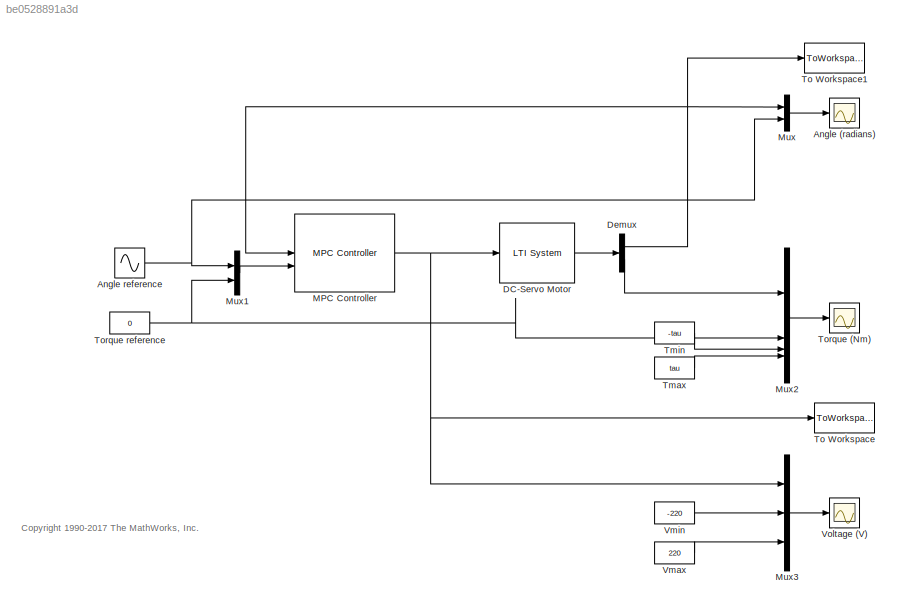
MODEL slx_be0528891a3d
KIND model
CONFIG AbsTol = auto
CONFIG EnableMultiTasking = on
CONFIG FixedStep = auto
CONFIG MaxStep = 0.1
CONFIG MinStep = 0.01
CONFIG RelTol = 1e-3
CONFIG SampleTimeConstraint = Unconstrained
CONFIG SolverName = FixedStepAuto
CONFIG StartTime = 0.0
CONFIG StopTime = 7
BLOCK [Scope] Angle (radians)
  Floating = off
  NumInputPorts = 1
  ScopeSpecificationString = Simulink.scopes.TimeScopeBlockCfg('CurrentConfiguration', extmgr.ConfigurationSet(extmgr.Configuration('Core','General UI',true),extmgr.Configuration('Core','Source UI',true),extmgr.Configuration('Sources','WiredSimulink',true,'DataLoggingSaveFormat','Structure','DataLoggingDecimation','1','DataLoggingDecimateData',true,'DataLoggingVariableName','ScopeData1'),extmgr.Configuration('Visuals','Time D...<+1652ch>
BLOCK [Sin] Angle reference
  Amplitude = pi
  Frequency = .4
  SampleTime = 0
BLOCK [Reference] DC-Servo Motor  REF=cstblocks/LTI System
  SourceBlock = cstblocks/LTI System
  SourceType = LTI Block
BLOCK [Demux] Demux
  DisplayOption = none
  Outputs = 2
BLOCK [Reference] MPC Controller  REF=mpclib/MPC Controller  (lib defined in mdl_ae329e0e0455)
  SourceBlock = mpclib/MPC Controller
  SourceType = MPC
BLOCK [Mux] Mux
  DisplayOption = bar
  Inputs = 2
BLOCK [Mux] Mux1
  DisplayOption = bar
  Inputs = 2
BLOCK [Mux] Mux2
  DisplayOption = bar
BLOCK [Mux] Mux3
  DisplayOption = bar
  Inputs = 3
BLOCK [Constant] Tmax
  Value = tau
BLOCK [Constant] Tmin
  Value = -tau
BLOCK [ToWorkspace] To Workspace
  MaxDataPoints = inf
  SampleTime = -1
  SaveFormat = Structure With Time
  VariableName = u
BLOCK [ToWorkspace] To Workspace1
  MaxDataPoints = inf
  SampleTime = -1
  SaveFormat = Structure With Time
  VariableName = y
BLOCK [Scope] Torque (Nm)
  Floating = off
  NumInputPorts = 1
  ScopeSpecificationString = Simulink.scopes.TimeScopeBlockCfg('CurrentConfiguration', extmgr.ConfigurationSet(extmgr.Configuration('Core','General UI',true),extmgr.Configuration('Core','Source UI',true),extmgr.Configuration('Sources','WiredSimulink',true,'DataLoggingSaveFormat','Structure','DataLoggingDecimation','1','DataLoggingDecimateData',true,'DataLoggingVariableName','ScopeData2'),extmgr.Configuration('Visuals','Time D...<+1661ch>
BLOCK [Constant] Torque reference
  Value = 0
BLOCK [Constant] Vmax
  Value = 220
BLOCK [Constant] Vmin
  Value = -220
BLOCK [Scope] Voltage (V)
  Floating = off
  NumInputPorts = 1
  ScopeSpecificationString = Simulink.scopes.TimeScopeBlockCfg('CurrentConfiguration', extmgr.ConfigurationSet(extmgr.Configuration('Core','General UI',true),extmgr.Configuration('Core','Source UI',true),extmgr.Configuration('Sources','WiredSimulink',true,'DataLoggingSaveFormat','Structure','DataLoggingDecimation','1','DataLoggingDecimateData',true),extmgr.Configuration('Visuals','Time Domain',true,'SerializedDisplays',{struc...<+1621ch>
ANNOTATION (root): <copyright redacted>
NET Angle reference:1 -> Mux1:1, Mux:2
LINE DC-Servo Motor:1 -> Demux:1
NET Demux:1 -> MPC Controller:1, Mux:1, To Workspace1:1
LINE Demux:2 -> Mux2:1
NET MPC Controller:1 -> DC-Servo Motor:1, Mux3:1, To Workspace:1
LINE Mux1:1 -> MPC Controller:2
LINE Mux2:1 -> Torque (Nm):1
LINE Mux3:1 -> Voltage (V):1
LINE Mux:1 -> Angle (radians):1
LINE Tmax:1 -> Mux2:4
LINE Tmin:1 -> Mux2:3
NET Torque reference:1 -> Mux1:2, Mux2:2
LINE Vmax:1 -> Mux3:3
LINE Vmin:1 -> Mux3:2
note: NET lines group one-source signal fan-out (src -> all destinations, sorted); 1:1 wires keep LINE
